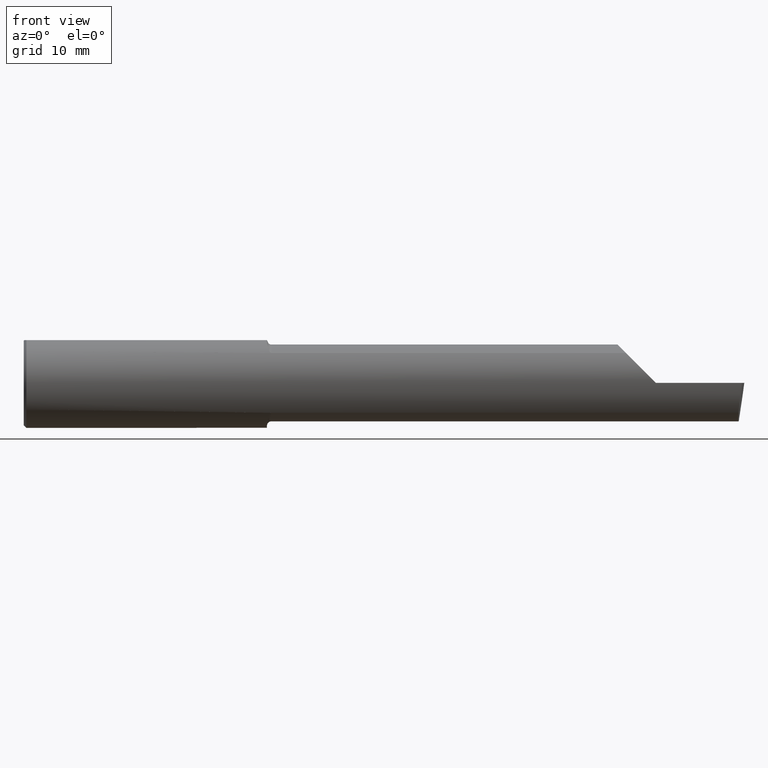
[diagram: clean part render]
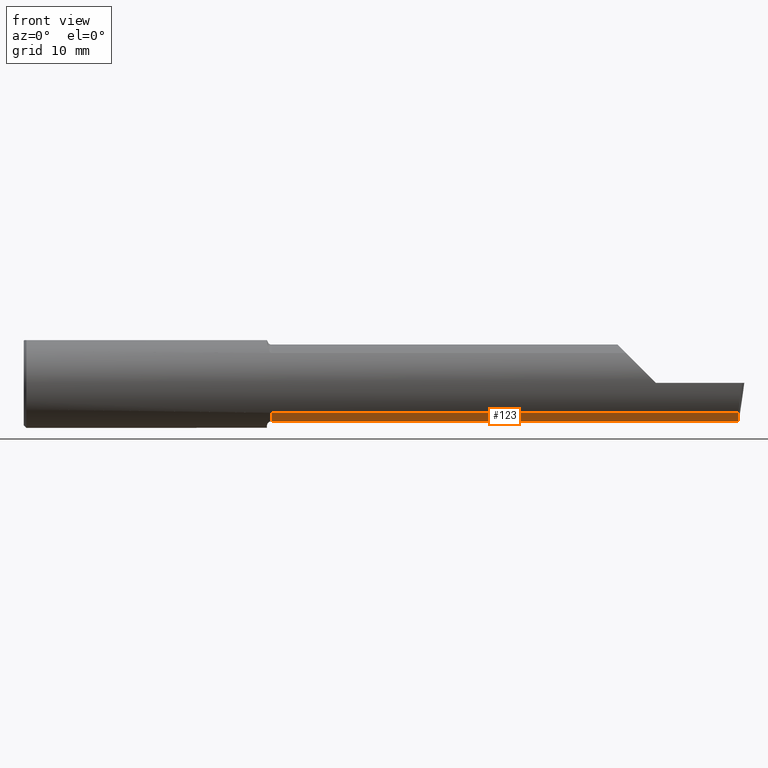
[diagram: same view with one face highlighted and labeled with its STEP entity id]
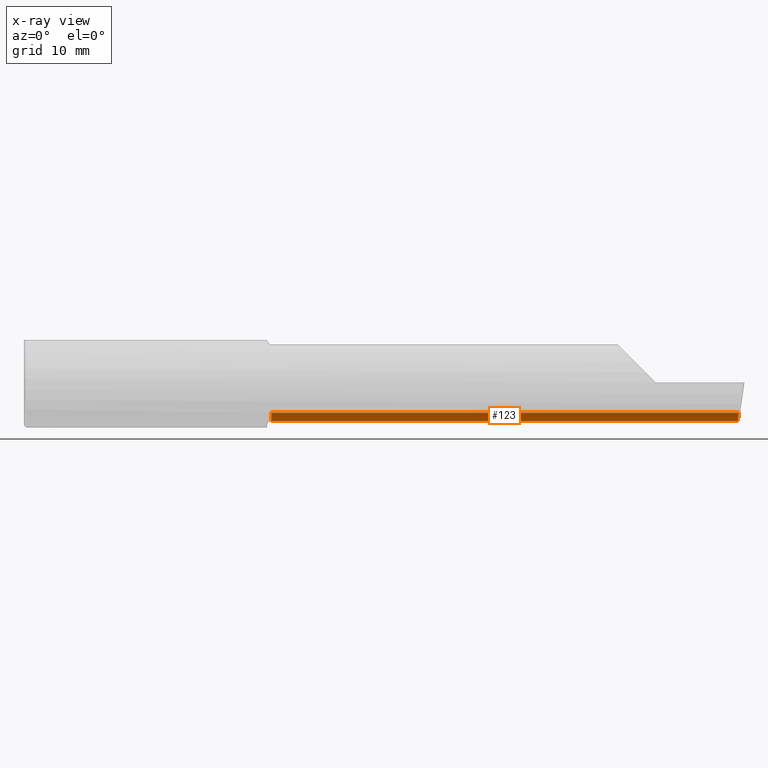
[diagram: x-ray of the same camera — body ghosted, the highlighted face saturated]
A machine part, front view. The second image highlights one B-rep face of the part: STEP entity #123.
The next image is the same camera in x-ray: the body ghosted, the highlighted face saturated — about 0% of this face is hidden behind the body in this view.
In plain terms, the highlighted cylindrical surface (partial cylindrical patch) has radius 5.414 mm, axis along (-1, -0, -0).
Its self-contained STEP definition (entity closure, byte-faithful):
#28 = ORIENTED_EDGE ( 'NONE', *, *, #257, .F. ) ;
#41 = DIRECTION ( 'NONE',  ( -1.000000000000000000, -0.0000000000000000000, -0.0000000000000000000 ) ) ;
#63 = ORIENTED_EDGE ( 'NONE', *, *, #437, .F. ) ;
#85 = DIRECTION ( 'NONE',  ( -1.000000000000000000, -0.0000000000000000000, -0.0000000000000000000 ) ) ;
#89 = DIRECTION ( 'NONE',  ( 0.0000000000000000000, 0.0000000000000000000, 1.000000000000000000 ) ) ;
#104 = LINE ( 'NONE', #293, #417 ) ;
#123 = ADVANCED_FACE ( 'NONE', ( #352 ), #642, .T. ) ;
#150 = DIRECTION ( 'NONE',  ( -1.000000000000000000, 5.691349986800549142E-18, -0.0000000000000000000 ) ) ;
#178 = CARTESIAN_POINT ( 'NONE',  ( 1.375000000000000000, -0.1868028301886802411, -0.1659208399614077178 ) ) ;
#185 = CARTESIAN_POINT ( 'NONE',  ( 3.965703997523709390, -0.1485302233682062878, -0.1967848538638754252 ) ) ;
#196 = DIRECTION ( 'NONE',  ( -1.000000000000000000, -0.0000000000000000000, -0.0000000000000000000 ) ) ;
#217 = VERTEX_POINT ( 'NONE', #410 ) ;
#238 = CARTESIAN_POINT ( 'NONE',  ( 0.0000000000000000000, -0.05299999999999996381, -0.2131499999999998951 ) ) ;
#239 = CARTESIAN_POINT ( 'NONE',  ( 3.964907988924521121, -0.1021668565906571902, -0.2131499999999998951 ) ) ;
#240 = VERTEX_POINT ( 'NONE', #513 ) ;
#257 = EDGE_CURVE ( 'NONE', #217, #545, #663, .T. ) ;
#284 = DIRECTION ( 'NONE',  ( -1.000000000000000000, -0.0000000000000000000, -0.0000000000000000000 ) ) ;
#293 = CARTESIAN_POINT ( 'NONE',  ( 4.000000000000000000, -0.05299999999999998462, -0.2131499999999999229 ) ) ;
#309 = AXIS2_PLACEMENT_3D ( 'NONE', #627, #284, #684 ) ;
#314 = ORIENTED_EDGE ( 'NONE', *, *, #768, .T. ) ;
#318 = VERTEX_POINT ( 'NONE', #648 ) ;
#319 = CARTESIAN_POINT ( 'NONE',  ( 3.968492717492760669, -0.1868028301886797693, -0.1659208399614083285 ) ) ;
#352 = FACE_OUTER_BOUND ( 'NONE', #537, .T. ) ;
#400 = CARTESIAN_POINT ( 'NONE',  ( 2.459999999999999964, -0.1868028301886797693, -0.1659208399614083285 ) ) ;
#410 = CARTESIAN_POINT ( 'NONE',  ( 1.375000000000000000, -0.05299999999999996381, -0.2131499999999996731 ) ) ;
#417 = VECTOR ( 'NONE', #150, 39.37007874015748143 ) ;
#429 = AXIS2_PLACEMENT_3D ( 'NONE', #441, #85, #89 ) ;
#437 = EDGE_CURVE ( 'NONE', #318, #240, #104, .T. ) ;
#441 = CARTESIAN_POINT ( 'NONE',  ( 0.0000000000000000000, -0.05299999999999998462, 0.0000000000000000000 ) ) ;
#476 = VECTOR ( 'NONE', #196, 39.37007874015748143 ) ;
#484 = LINE ( 'NONE', #400, #501 ) ;
#485 = VERTEX_POINT ( 'NONE', #319 ) ;
#501 = VECTOR ( 'NONE', #41, 39.37007874015748143 ) ;
#509 = LINE ( 'NONE', #238, #476 ) ;
#513 = CARTESIAN_POINT ( 'NONE',  ( 3.544999999999999929, -0.05299999999999998462, -0.2131499999999999229 ) ) ;
#537 = EDGE_LOOP ( 'NONE', ( #715, #63, #547, #314, #28 ) ) ;
#545 = VERTEX_POINT ( 'NONE', #178 ) ;
#547 = ORIENTED_EDGE ( 'NONE', *, *, #595, .F. ) ;
#555 = EDGE_CURVE ( 'NONE', #240, #217, #509, .T. ) ;
#580 = CARTESIAN_POINT ( 'NONE',  ( 3.968492717492760669, -0.1868028301886797693, -0.1659208399614083285 ) ) ;
#595 = EDGE_CURVE ( 'NONE', #485, #318, #704, .T. ) ;
#627 = CARTESIAN_POINT ( 'NONE',  ( 1.375000000000000000, -0.05299999999999998462, 0.0000000000000000000 ) ) ;
#642 = CYLINDRICAL_SURFACE ( 'NONE', #429, 0.2131499999999998951 ) ;
#648 = CARTESIAN_POINT ( 'NONE',  ( 3.966195468375007582, -0.05299999999999998462, -0.2131499999999999229 ) ) ;
#653 = CARTESIAN_POINT ( 'NONE',  ( 3.966195468375007582, -0.05299999999999998462, -0.2131499999999999229 ) ) ;
#663 = CIRCLE ( 'NONE', #309, 0.2131499999999996731 ) ;
#684 = DIRECTION ( 'NONE',  ( 0.0000000000000000000, 0.0000000000000000000, 1.000000000000000000 ) ) ;
#704 =( BOUNDED_CURVE ( )  B_SPLINE_CURVE ( 3, ( #580, #185, #239, #653 ),
 .UNSPECIFIED., .F., .T. ) 
 B_SPLINE_CURVE_WITH_KNOTS ( ( 4, 4 ),
 ( 5.814587959757480107, 6.493234751459721288 ),
 .UNSPECIFIED. ) 
 CURVE ( )  GEOMETRIC_REPRESENTATION_ITEM ( )  RATIONAL_B_SPLINE_CURVE ( ( 1.000000000000000000, 0.9619867256453021875, 0.9619867256453021875, 1.000000000000000000 ) ) 
 REPRESENTATION_ITEM ( '' )  );
#715 = ORIENTED_EDGE ( 'NONE', *, *, #555, .F. ) ;
#768 = EDGE_CURVE ( 'NONE', #485, #545, #484, .T. ) ;